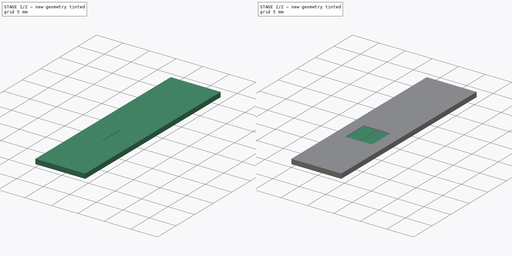
[diagram: build sequence overview — one tinted view per stage of 2, left to right]
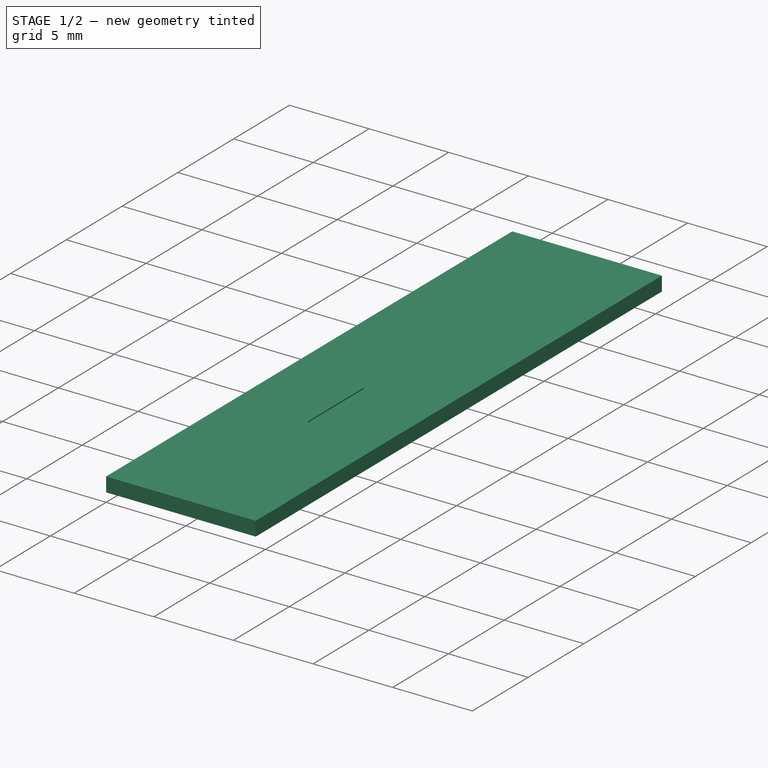
[diagram: stage 1 of 2 — iso view after this stage's code; geometry added in this stage tinted green]
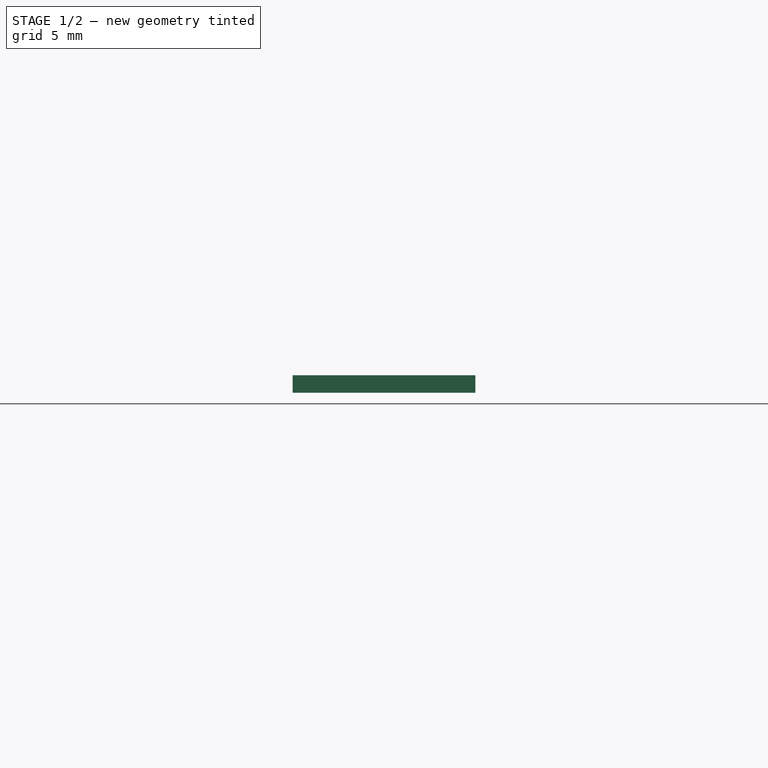
[diagram: stage 1 of 2 — front view after this stage's code; geometry added in this stage tinted green]
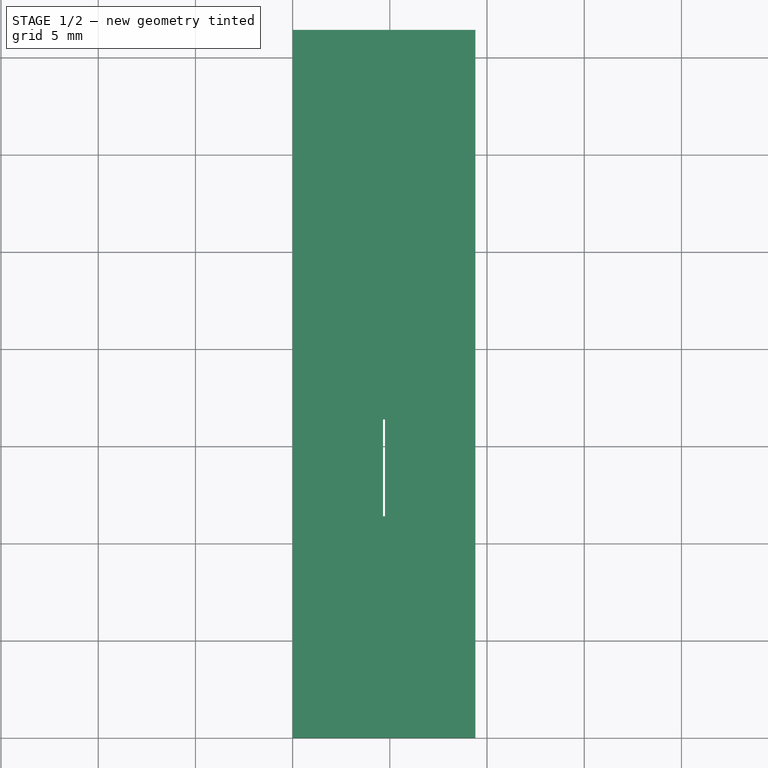
[diagram: stage 1 of 2 — top view after this stage's code; geometry added in this stage tinted green]
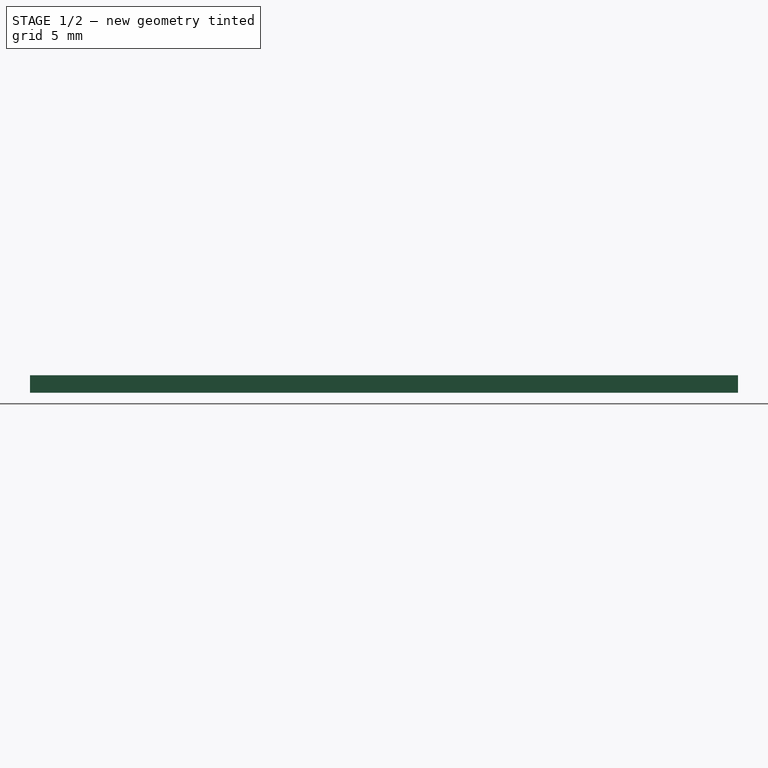
[diagram: stage 1 of 2 — right view after this stage's code; geometry added in this stage tinted green]
FCSTD DOCUMENT  (FreeCAD 0.20R29177 (Git))
Label: Slit wide
License: All rights reserved
LicenseURL: http://en.wikipedia.org/wiki/All_rights_reserved
objects: Sketcher::SketchObject×2, PartDesign::Pad×1, PartDesign::Pocket×1, PartDesign::Body×1
note: 7 computed .brp shape members not serialized (recipe doc carries the construction recipe); baked Part::Feature solids carry a one-line shape summary decoded from their .brp

FEATURE [Sketcher::SketchObject] Sketch
  FullyConstrained = true
  MapMode = 5
  Support = -> [XY_Plane]
  sketch-geometry (9):
    g0: LineSegment StartX=0 StartY=0 StartZ=0 EndX=9.4 EndY=0 EndZ=0
    g1: LineSegment StartX=9.4 StartY=0 StartZ=0 EndX=9.4 EndY=36.42 EndZ=0
    g2: LineSegment StartX=9.4 StartY=36.42 StartZ=0 EndX=0 EndY=36.42 EndZ=0
    g3: LineSegment StartX=0 StartY=36.42 StartZ=0 EndX=0 EndY=0 EndZ=0
    g4: LineSegment StartX=4.7 StartY=36.42 StartZ=0 EndX=4.7 EndY=0 EndZ=0
    g5: LineSegment StartX=4.65 StartY=16.4 StartZ=0 EndX=4.75 EndY=16.4 EndZ=0
    g6: LineSegment StartX=4.75 StartY=16.4 StartZ=0 EndX=4.75 EndY=11.4 EndZ=0
    g7: LineSegment StartX=4.75 StartY=11.4 StartZ=0 EndX=4.65 EndY=11.4 EndZ=0
    g8: LineSegment StartX=4.65 StartY=11.4 StartZ=0 EndX=4.65 EndY=16.4 EndZ=0
  constraints (25):
    c: Coincident(g0,g1)
    c: Coincident(g1,g2)
    c: Coincident(g2,g3)
    c: Coincident(g3,g0)
    c: Horizontal(g0)
    c: Horizontal(g2)
    c: Vertical(g1)
    c: Vertical(g3)
    c: Coincident(g0,g-1)
    c: DistanceX(g2,g2) = 9.4
    c: DistanceY(g1,g1) = 36.42
    c: PointOnObject(g4,g0)
    c: Vertical(g4)
    c: Symmetric(g2,g1,g4)
    c: Coincident(g5,g6)
    c: Coincident(g6,g7)
    c: Coincident(g7,g8)
    c: Coincident(g8,g5)
    c: Horizontal(g7)
    c: Vertical(g6)
    c: Vertical(g8)
    c: Symmetric(g5,g5,g4)
    c: DistanceY(g0,g6) = 11.4
    c: DistanceY(g6,g6) = 5
    c: DistanceX(g7,g7) = 0.1
FEATURE [PartDesign::Pad] Pad
  Direction = (0,0,1)
  Length = 0.9
  Length2 = 10
  Profile = -> Sketch
  ReferenceAxis = -> Sketch [N_Axis]
  Type = 0
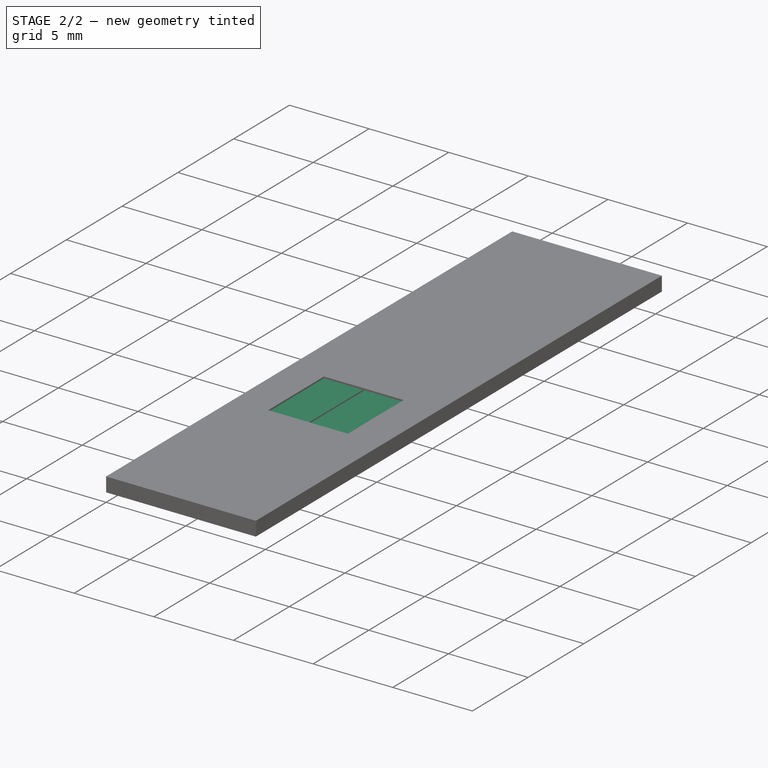
[diagram: stage 2 of 2 — iso view after this stage's code; geometry added in this stage tinted green]
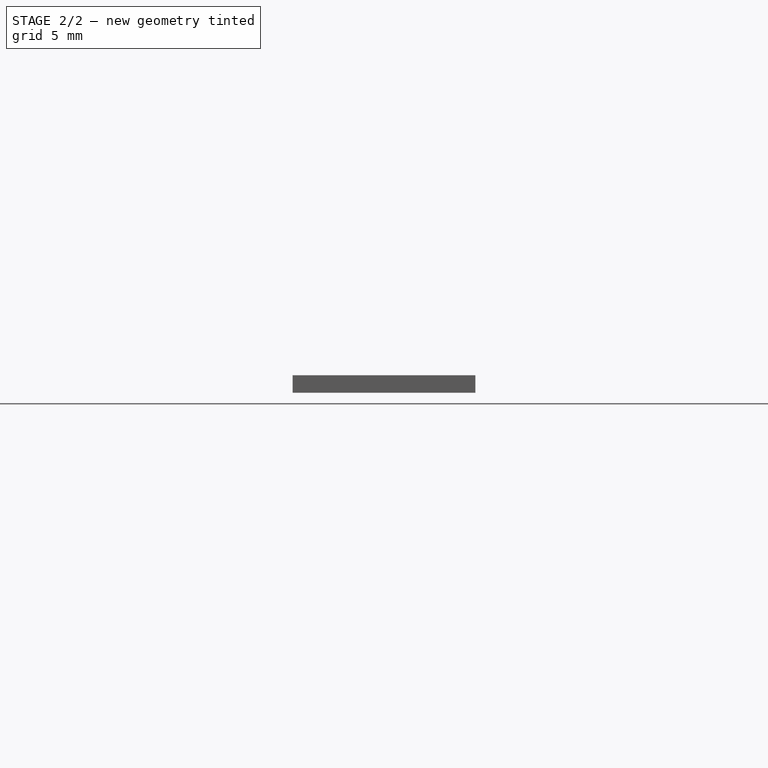
[diagram: stage 2 of 2 — front view after this stage's code; geometry added in this stage tinted green]
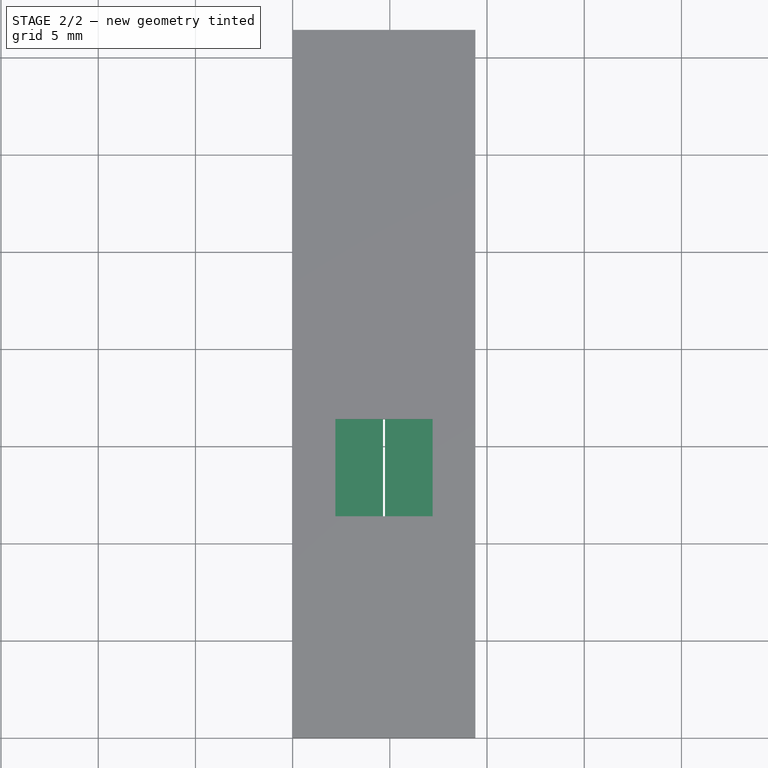
[diagram: stage 2 of 2 — top view after this stage's code; geometry added in this stage tinted green]
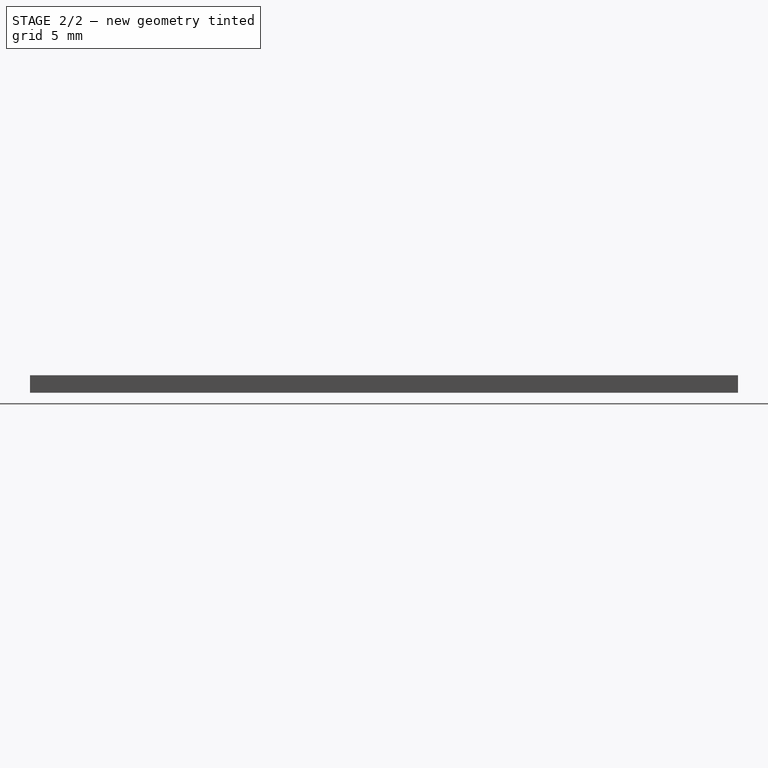
[diagram: stage 2 of 2 — right view after this stage's code; geometry added in this stage tinted green]
FEATURE [Sketcher::SketchObject] Sketch001
  FullyConstrained = true
  MapMode = 5
  Placement = pos=(0,0,0.9) rot=(0,0,1;0rad)
  Support = -> [Pad]
  expr: Constraints[11] = 13.4 - (5 - 1) / 2
  sketch-geometry (4):
    g0: LineSegment StartX=2.2 StartY=16.4 StartZ=0 EndX=7.2 EndY=16.4 EndZ=0
    g1: LineSegment StartX=7.2 StartY=16.4 StartZ=0 EndX=7.2 EndY=11.4 EndZ=0
    g2: LineSegment StartX=7.2 StartY=11.4 StartZ=0 EndX=2.2 EndY=11.4 EndZ=0
    g3: LineSegment StartX=2.2 StartY=11.4 StartZ=0 EndX=2.2 EndY=16.4 EndZ=0
  constraints (12):
    c: Coincident(g0,g1)
    c: Coincident(g1,g2)
    c: Coincident(g2,g3)
    c: Coincident(g3,g0)
    c: Horizontal(g0)
    c: Horizontal(g2)
    c: Vertical(g1)
    c: Vertical(g3)
    c: DistanceX(g2,g2) = 5
    c: DistanceY(g1,g1) = 5
    c: DistanceX(g-1,g2) = 2.2
    c: DistanceY(g-1,g2) = 11.4
FEATURE [PartDesign::Pocket] Pocket
  BaseFeature = -> Pad
  Direction = (0,0,-1)
  Length = 0.1
  Length2 = 5
  Profile = -> Sketch001
  ReferenceAxis = -> Sketch001 [N_Axis]
  Type = 0
FEATURE [PartDesign::Body] Body
  Group = -> [Sketch,Pad,Sketch001,Pocket]
  Origin = -> Origin
  Tip = -> Pocket
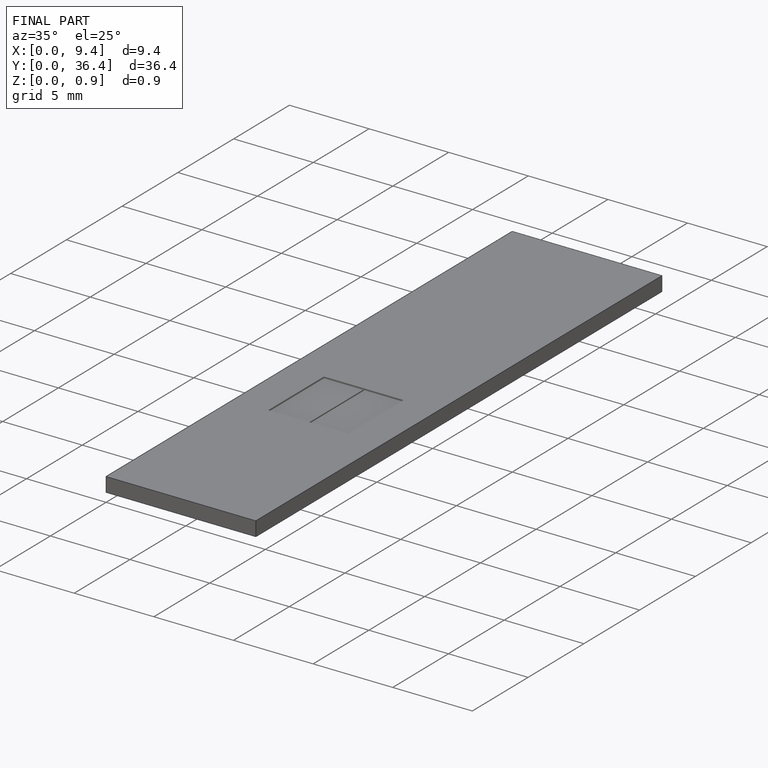
[diagram: finished part — iso view with bounding-box wireframe]
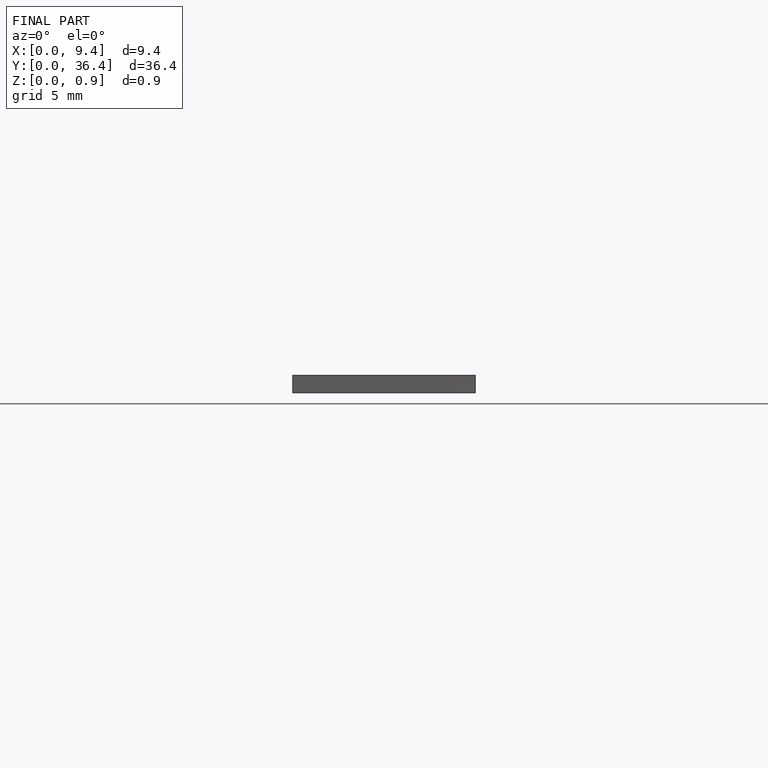
[diagram: finished part — front view with bounding-box wireframe]
